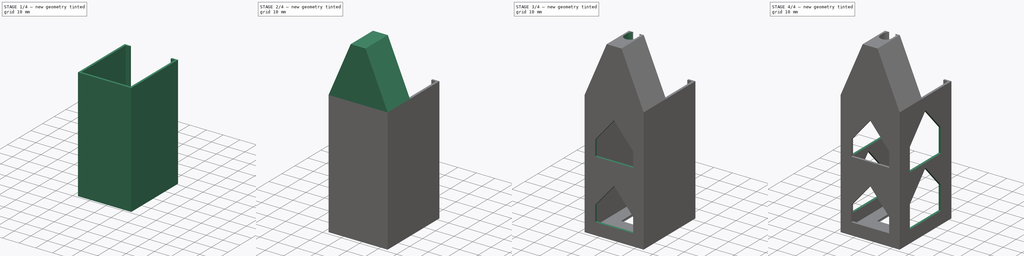
[diagram: build sequence overview — one tinted view per stage of 4, left to right]
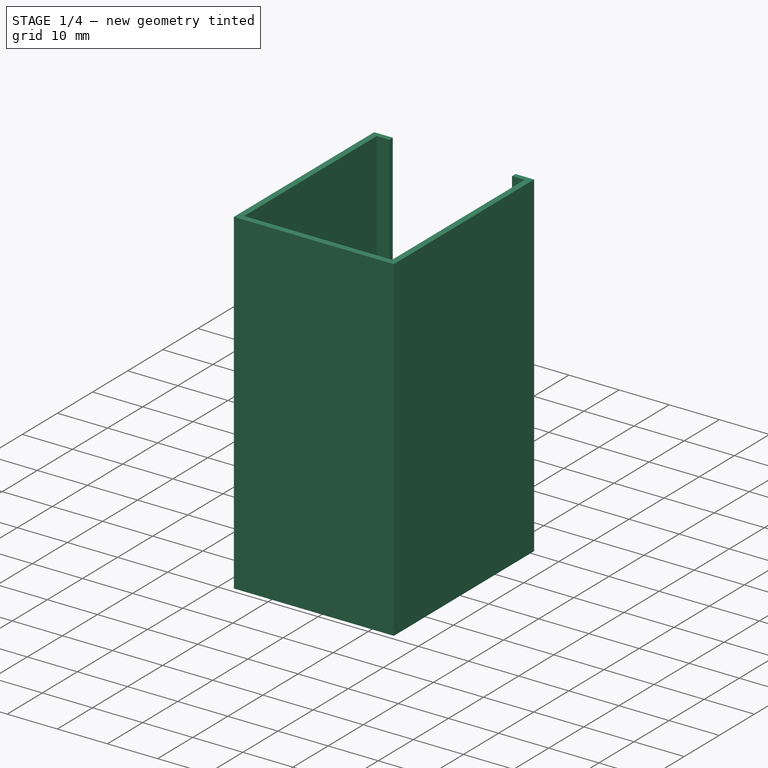
[diagram: stage 1 of 4 — iso view after this stage's code; geometry added in this stage tinted green]
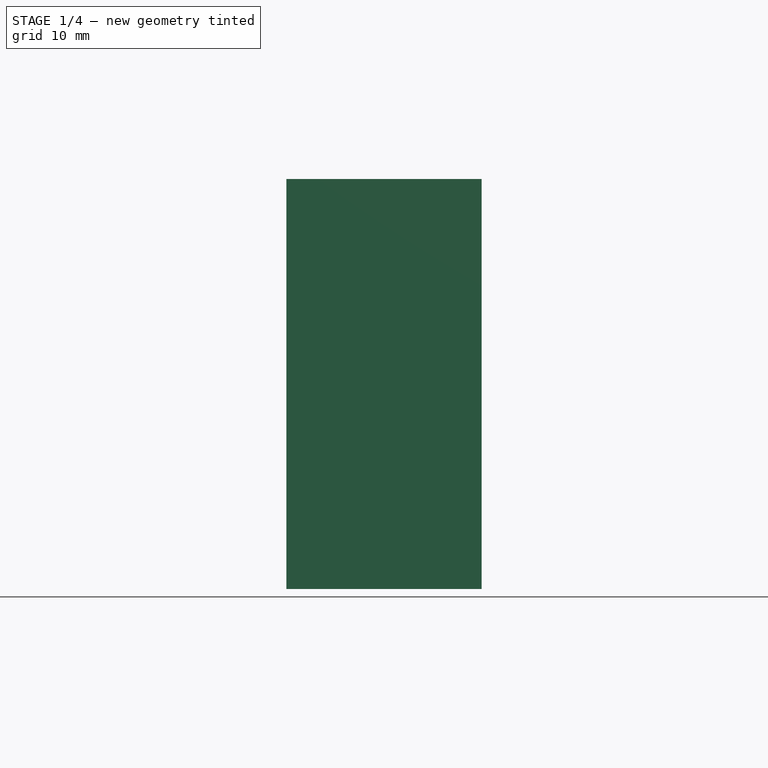
[diagram: stage 1 of 4 — front view after this stage's code; geometry added in this stage tinted green]
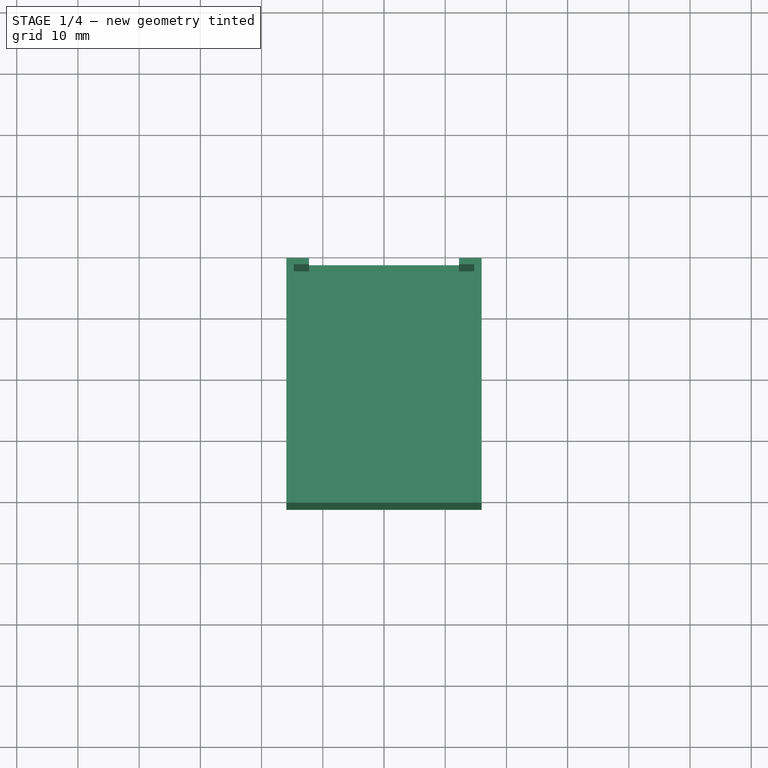
[diagram: stage 1 of 4 — top view after this stage's code; geometry added in this stage tinted green]
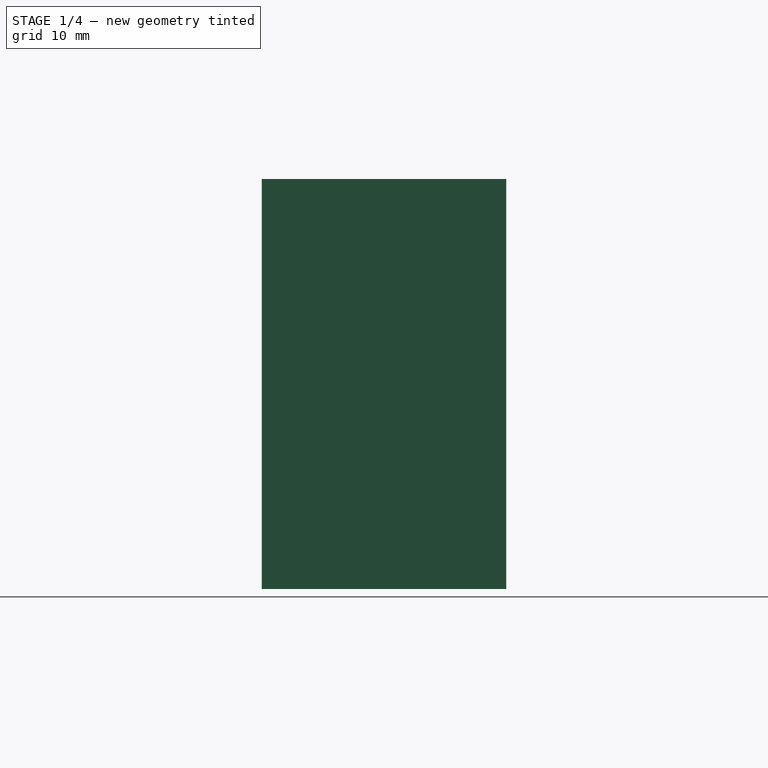
[diagram: stage 1 of 4 — right view after this stage's code; geometry added in this stage tinted green]
FCSTD DOCUMENT  (FreeCAD 0.19R)
Label: PlugTHing
License: All rights reserved
LicenseURL: http://en.wikipedia.org/wiki/All_rights_reserved
objects: Sketcher::SketchObject×8, PartDesign::Pad×4, PartDesign::Pocket×4, PartDesign::LinearPattern×2, PartDesign::Body×1
note: 27 computed .brp shape members not serialized (recipe doc carries the construction recipe); baked Part::Feature solids carry a one-line shape summary decoded from their .brp

FEATURE [Sketcher::SketchObject] Sketch
  FullyConstrained = true
  MapMode = 5
  Support = -> [XY_Plane]
  sketch-geometry (12):
    g0: LineSegment StartX=14.75 StartY=37.75 StartZ=0 EndX=14.75 EndY=0 EndZ=0
    g1: LineSegment StartX=14.75 StartY=0 StartZ=0 EndX=-14.75 EndY=0 EndZ=0
    g2: LineSegment StartX=-14.75 StartY=0 StartZ=0 EndX=-14.75 EndY=37.75 EndZ=0
    g3: LineSegment StartX=14.75 StartY=37.75 StartZ=0 EndX=12.25 EndY=37.75 EndZ=0
    g4: LineSegment StartX=-14.75 StartY=37.75 StartZ=0 EndX=-12.25 EndY=37.75 EndZ=0
    g5: LineSegment StartX=12.25 StartY=37.75 StartZ=0 EndX=12.25 EndY=38.75 EndZ=0
    g6: LineSegment StartX=12.25 StartY=38.75 StartZ=0 EndX=15.95 EndY=38.75 EndZ=0
    g7: LineSegment StartX=15.95 StartY=38.75 StartZ=0 EndX=15.95 EndY=-1.2 EndZ=0
    g8: LineSegment StartX=15.95 StartY=-1.2 StartZ=0 EndX=-15.95 EndY=-1.2 EndZ=0
    g9: LineSegment StartX=-15.95 StartY=-1.2 StartZ=0 EndX=-15.95 EndY=38.75 EndZ=0
    g10: LineSegment StartX=-15.95 StartY=38.75 StartZ=0 EndX=-12.25 EndY=38.75 EndZ=0
    g11: LineSegment StartX=-12.25 StartY=38.75 StartZ=0 EndX=-12.25 EndY=37.75 EndZ=0
  constraints (35):
    c: Coincident(g0,g1)
    c: Coincident(g1,g2)
    c: Horizontal(g1)
    c: Vertical(g0)
    c: Vertical(g2)
    c: Symmetric(g0,g1,g-1)
    c: Distance(g1) = 29.5
    c: Distance(g0) = 37.75
    c: Coincident(g3,g0)
    c: Coincident(g4,g2)
    c: Horizontal(g4)
    c: Coincident(g5,g3)
    c: Coincident(g5,g6)
    c: Coincident(g6,g7)
    c: Vertical(g7)
    c: Coincident(g7,g8)
    c: Horizontal(g8)
    c: Coincident(g8,g9)
    c: Vertical(g9)
    c: Coincident(g9,g10)
    c: Horizontal(g10)
    c: Coincident(g10,g11)
    c: Coincident(g11,g4)
    c: Distance(g1,g9) = 1.2
    c: Distance(g7,g0) = 1.2
    c: Distance(g7,g1) = 1.2
    c: Distance(g2,g10) = 1
    c: Distance(g0,g6) = 1
    c: Horizontal(g6)
    c: Horizontal(g3)
    c: Vertical(g11)
    c: DistanceY(g2) = 37.75
    c: Distance(g4) = 2.5
    c: Equal(g3,g4)
    c: Vertical(g5)
FEATURE [PartDesign::Pad] Pad
  Direction = (1,1,1)
  Length = 66
  Length2 = 100
  Profile = -> Sketch
  Type = 0
FEATURE [Sketcher::SketchObject] Sketch001
  ExternalGeometry = -> [Pad]
  FullyConstrained = true
  MapMode = 5
  Placement = pos=(0,0,0) rot=(1,0,0;3.14159rad)
  Support = -> [Pad]
  sketch-geometry (4):
    g0: LineSegment StartX=-15.95 StartY=1.2 StartZ=0 EndX=15.95 EndY=1.2 EndZ=0
    g1: LineSegment StartX=15.95 StartY=1.2 StartZ=0 EndX=15.95 EndY=-38.75 EndZ=0
    g2: LineSegment StartX=15.95 StartY=-38.75 StartZ=0 EndX=-15.95 EndY=-38.75 EndZ=0
    g3: LineSegment StartX=-15.95 StartY=-38.75 StartZ=0 EndX=-15.95 EndY=1.2 EndZ=0
  constraints (9):
    c: Coincident(g0,g1)
    c: Coincident(g1,g2)
    c: Coincident(g2,g3)
    c: Coincident(g3,g0)
    c: Horizontal(g2)
    c: Vertical(g3)
    c: Coincident(g0,g-3)
    c: Coincident(g0,g-3)
    c: Coincident(g1,g-4)
FEATURE [PartDesign::Pad] Pad001
  BaseFeature = -> Pad
  Direction = (1,1,1)
  Length = 1
  Length2 = 100
  Profile = -> Sketch001
  Type = 0
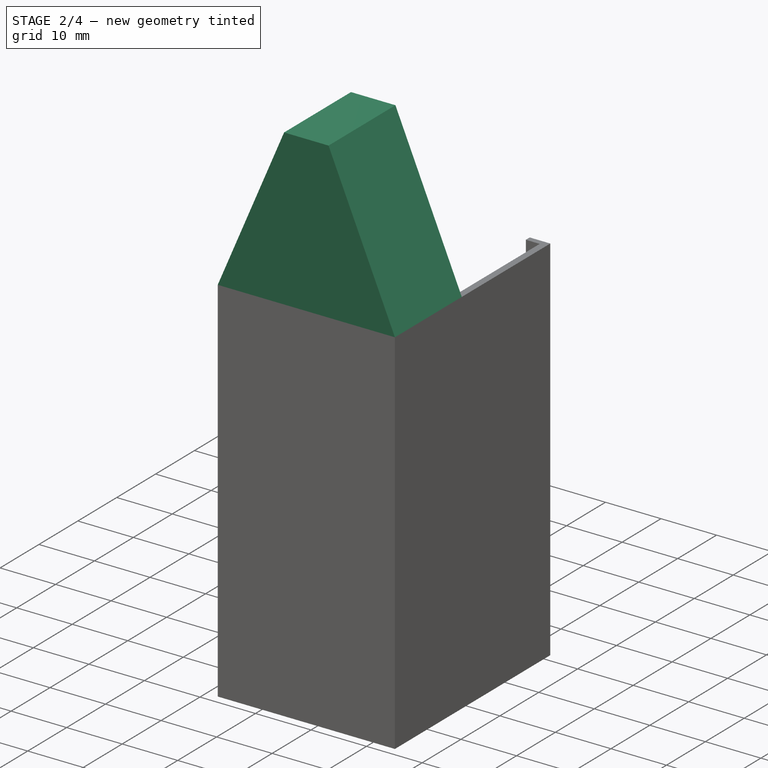
[diagram: stage 2 of 4 — iso view after this stage's code; geometry added in this stage tinted green]
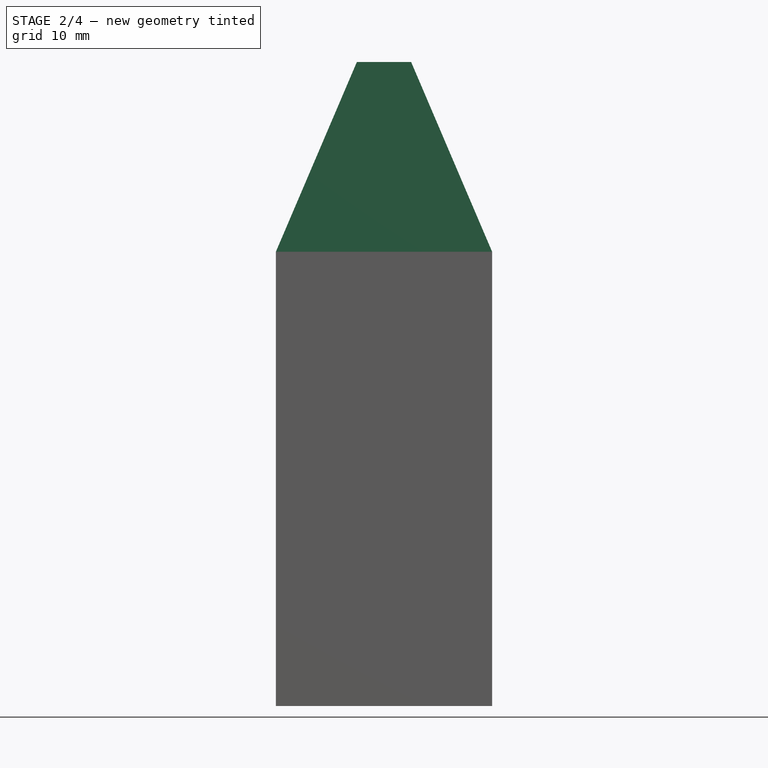
[diagram: stage 2 of 4 — front view after this stage's code; geometry added in this stage tinted green]
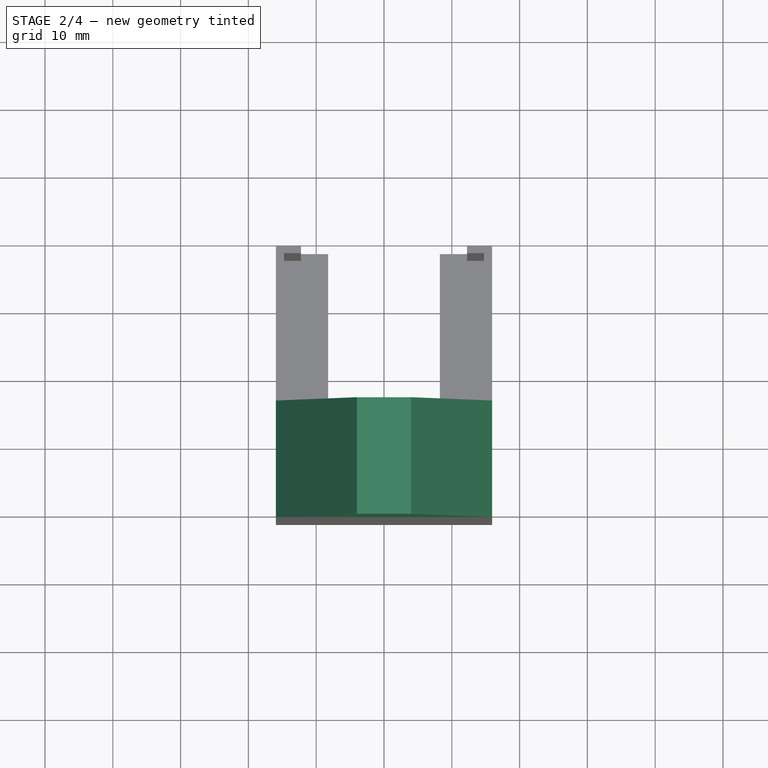
[diagram: stage 2 of 4 — top view after this stage's code; geometry added in this stage tinted green]
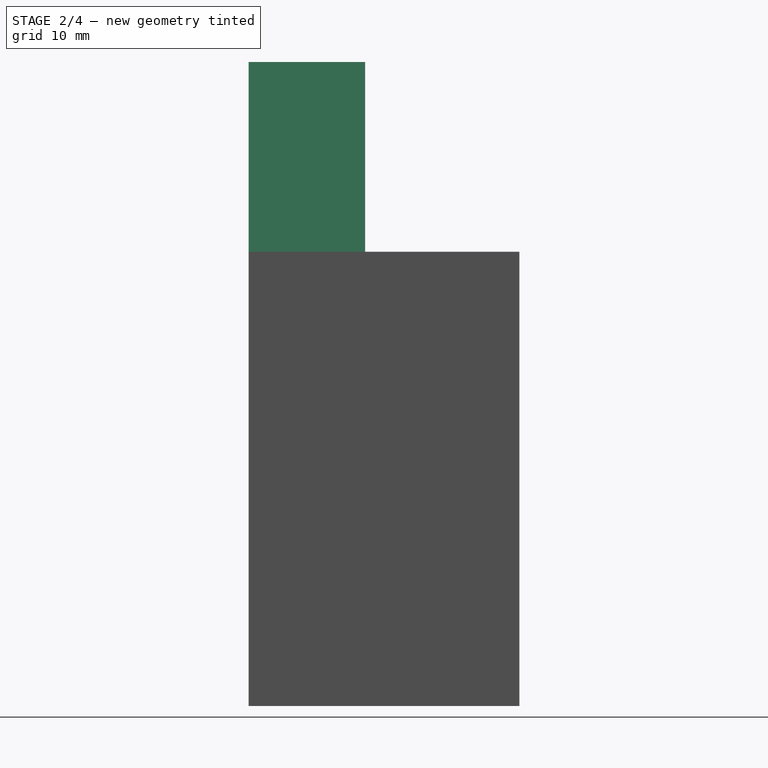
[diagram: stage 2 of 4 — right view after this stage's code; geometry added in this stage tinted green]
FEATURE [Sketcher::SketchObject] Sketch002
  ExternalGeometry = -> [Pad001]
  FullyConstrained = true
  MapMode = 5
  Placement = pos=(0,-1.2,0) rot=(1,0,0;1.5708rad)
  Support = -> [Pad001]
  sketch-geometry (4):
    g0: LineSegment StartX=-15.95 StartY=66 StartZ=0 EndX=-4 EndY=94 EndZ=0
    g1: LineSegment StartX=-4 StartY=94 StartZ=0 EndX=4 EndY=94 EndZ=0
    g2: LineSegment StartX=4 StartY=94 StartZ=0 EndX=15.95 EndY=66 EndZ=0
    g3: LineSegment StartX=15.95 StartY=66 StartZ=0 EndX=-15.95 EndY=66 EndZ=0
  constraints (9):
    c: Coincident(g-3,g0)
    c: Coincident(g0,g1)
    c: Coincident(g1,g2)
    c: Coincident(g2,g-3)
    c: Coincident(g2,g3)
    c: Coincident(g3,g0)
    c: Distance(g1) = 8
    c: Symmetric(g1,g0,g-2)
    c: Distance(g1,g3) = 28
FEATURE [PartDesign::Pad] Pad002
  BaseFeature = -> Pad001
  Direction = (1,1,1)
  Length = 1.2
  Length2 = 100
  Profile = -> Sketch002
  Reversed = true
  Type = 0
FEATURE [Sketcher::SketchObject] Sketch007
  ExternalGeometry = -> [Pad002]
  FullyConstrained = true
  MapMode = 5
  Placement = pos=(0,-2.6e-15,0) rot=(0,0.707107,0.707107;3.14159rad)
  Support = -> [Pad002]
  sketch-geometry (8):
    g0: LineSegment StartX=-15.95 StartY=66 StartZ=0 EndX=-14.7 EndY=66 EndZ=0
    g1: LineSegment StartX=-14.7 StartY=66 StartZ=0 EndX=-3.5 EndY=88 EndZ=0
    g2: LineSegment StartX=-3.5 StartY=88 StartZ=0 EndX=3.5 EndY=88 EndZ=0
    g3: LineSegment StartX=3.5 StartY=88 StartZ=0 EndX=14.7 EndY=66 EndZ=0
    g4: LineSegment StartX=14.7 StartY=66 StartZ=0 EndX=15.95 EndY=66 EndZ=0
    g5: LineSegment StartX=15.95 StartY=66 StartZ=0 EndX=4 EndY=94 EndZ=0
    g6: LineSegment StartX=4 StartY=94 StartZ=0 EndX=-4 EndY=94 EndZ=0
    g7: LineSegment StartX=-4 StartY=94 StartZ=0 EndX=-15.95 EndY=66 EndZ=0
  constraints (19):
    c: Coincident(g4,g3)
    c: Distance(g4) = 1.25
    c: Coincident(g4,g5)
    c: Distance(g0) = 1.25
    c: Coincident(g0,g7)
    c: Coincident(g1,g0)
    c: Coincident(g0,g-4)
    c: Horizontal(g0)
    c: Horizontal(g4)
    c: Coincident(g4,g-3)
    c: Distance(g2) = 7
    c: Symmetric(g2,g2,g-2)
    c: Coincident(g3,g2)
    c: Coincident(g1,g2)
    c: DistanceY(g2) = 88
    c: Coincident(g7,g-4)
    c: Coincident(g6,g7)
    c: Coincident(g6,g-3)
    c: Coincident(g5,g6)
FEATURE [PartDesign::Pad] Pad003
  BaseFeature = -> Pad002
  Direction = (1,1,1)
  Length = 16
  Length2 = 100
  Profile = -> Sketch007
  Type = 0
FEATURE [Sketcher::SketchObject] Sketch011
  FullyConstrained = false
  MapMode = 5
  Placement = pos=(0,0,-1) rot=(1,0,0;3.14159rad)
  Support = -> [Pad003]
  sketch-geometry (4):
    g0: LineSegment StartX=-8.23572 StartY=-16 StartZ=0 EndX=8.23572 EndY=-16 EndZ=0
    g1: LineSegment StartX=8.23572 StartY=-16 StartZ=0 EndX=8.23572 EndY=-46.4155 EndZ=0
    g2: LineSegment StartX=8.23572 StartY=-46.4155 StartZ=0 EndX=-8.23572 EndY=-46.4155 EndZ=0
    g3: LineSegment StartX=-8.23572 StartY=-46.4155 StartZ=0 EndX=-8.23572 EndY=-16 EndZ=0
  constraints (9):
    c: Coincident(g0,g1)
    c: Coincident(g1,g2)
    c: Coincident(g2,g3)
    c: Coincident(g3,g0)
    c: Horizontal(g2)
    c: Vertical(g1)
    c: Vertical(g3)
    c: Symmetric(g0,g0,g-2)
    c: DistanceY(g0) = -16
FEATURE [PartDesign::Pocket] Pocket
  BaseFeature = -> Pad003
  Length = 5
  Length2 = 100
  Profile = -> Sketch011
  Type = 0
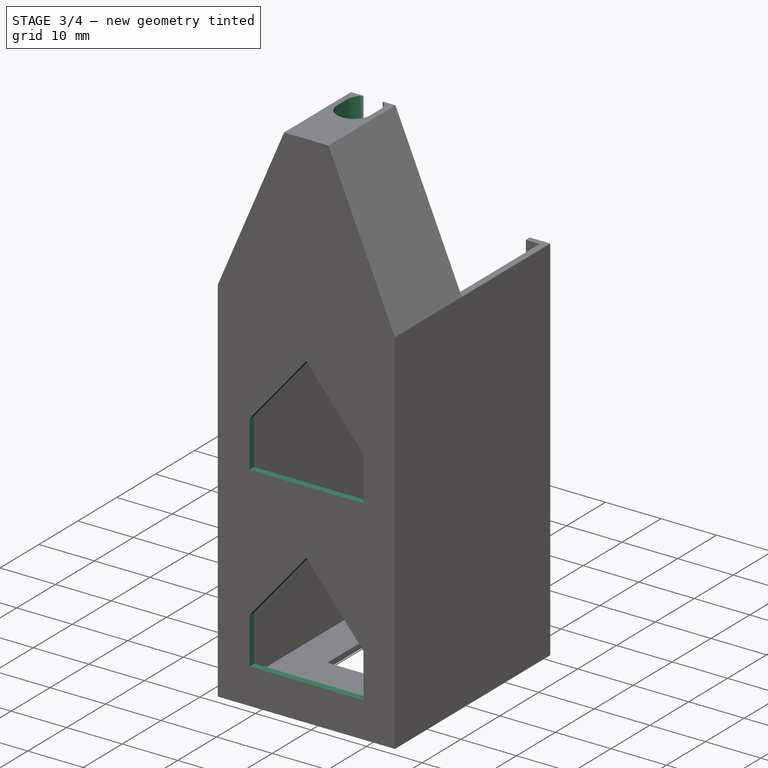
[diagram: stage 3 of 4 — iso view after this stage's code; geometry added in this stage tinted green]
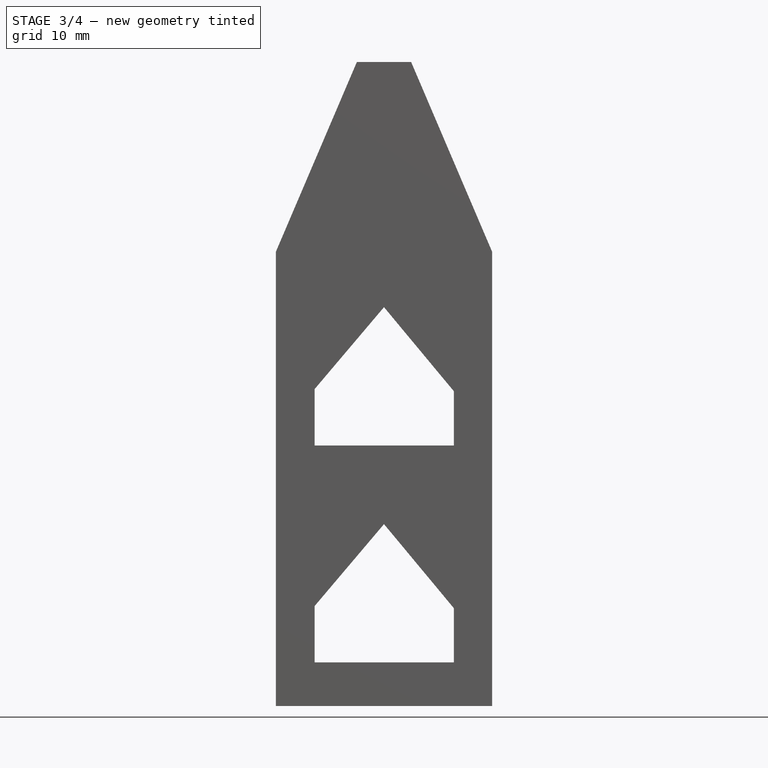
[diagram: stage 3 of 4 — front view after this stage's code; geometry added in this stage tinted green]
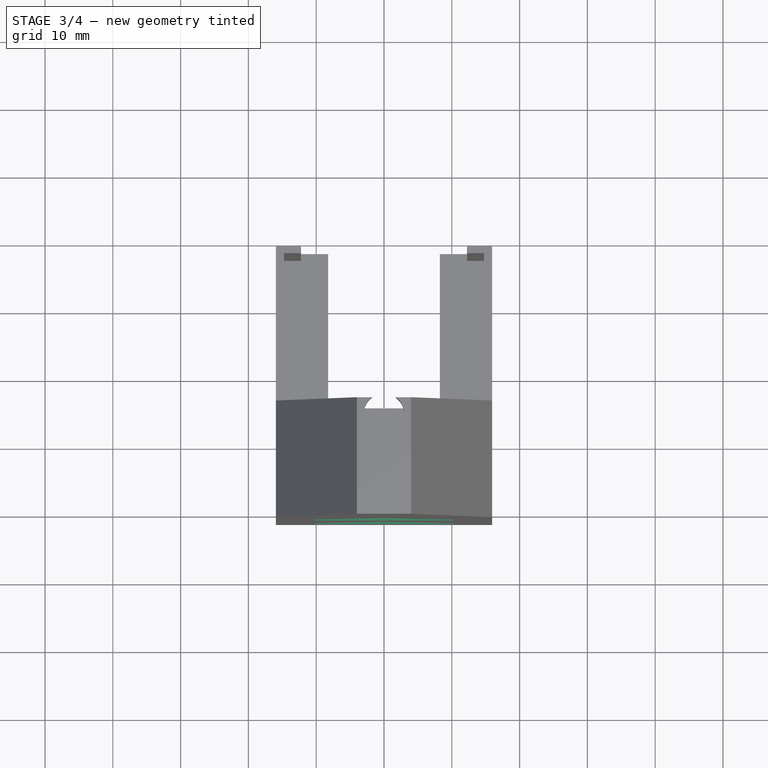
[diagram: stage 3 of 4 — top view after this stage's code; geometry added in this stage tinted green]
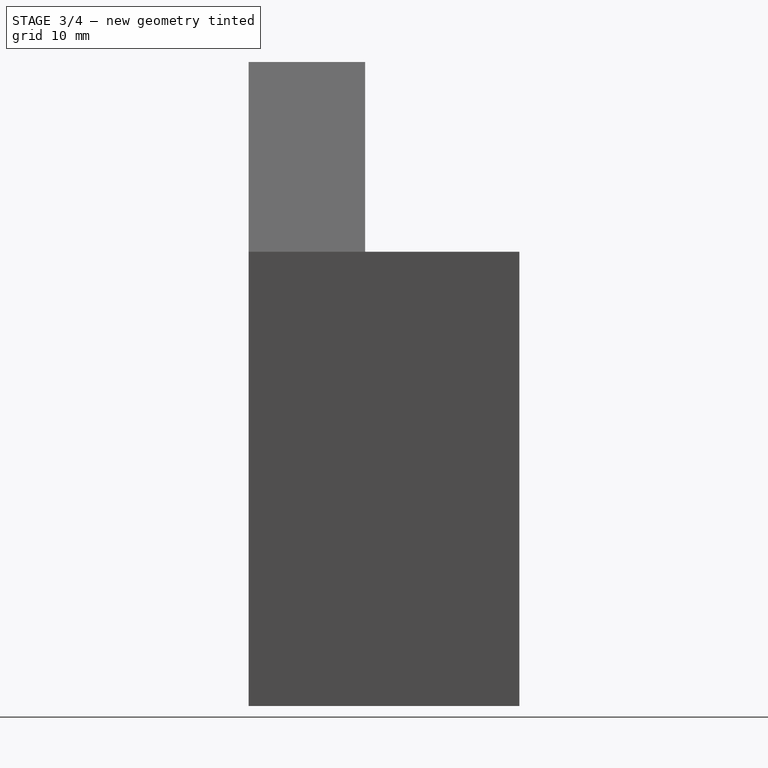
[diagram: stage 3 of 4 — right view after this stage's code; geometry added in this stage tinted green]
FEATURE [Sketcher::SketchObject] Sketch012
  FullyConstrained = false
  MapMode = 5
  Placement = pos=(0,2.09e-14,94) rot=(0,0,1;0rad)
  Support = -> [Pocket]
  sketch-geometry (4):
    g0: ArcOfCircle CenterX=-0.014618 CenterY=13.549 CenterZ=0 NormalX=0 NormalY=0 NormalZ=1 AngleXU=0 Radius=3 StartAngle=0 EndAngle=3.14159
    g1: ArcOfCircle CenterX=-0.014618 CenterY=11.034 CenterZ=0 NormalX=0 NormalY=0 NormalZ=1 AngleXU=0 Radius=3 StartAngle=3.14159 EndAngle=6.28319
    g2: LineSegment StartX=-3.01462 StartY=13.549 StartZ=0 EndX=-3.01462 EndY=11.034 EndZ=0
    g3: LineSegment StartX=2.98538 StartY=13.549 StartZ=0 EndX=2.98538 EndY=11.034 EndZ=0
  constraints (7):
    c: Tangent(g0,g3) = 1.5708
    c: Tangent(g0,g2) = -1.5708
    c: Tangent(g2,g1) = -1.5708
    c: Tangent(g3,g1) = 1.5708
    c: Vertical(g2)
    c: Equal(g0,g1)
    c: Radius(g1) = 3
FEATURE [PartDesign::Pocket] Pocket001
  BaseFeature = -> Pocket
  Length = 8
  Length2 = 100
  Profile = -> Sketch012
  Type = 0
FEATURE [Sketcher::SketchObject] Sketch014
  FullyConstrained = false
  MapMode = 5
  Placement = pos=(0,-1.2,0) rot=(1,0,0;1.5708rad)
  Support = -> [Pocket001]
  sketch-geometry (5):
    g0: LineSegment StartX=0 StartY=25.8332 StartZ=0 EndX=-10.2379 EndY=13.7475 EndZ=0
    g1: LineSegment StartX=-10.2379 StartY=13.7475 StartZ=0 EndX=-10.2379 EndY=5.43468 EndZ=0
    g2: LineSegment StartX=-10.2379 StartY=5.43468 StartZ=0 EndX=10.2979 EndY=5.43468 EndZ=0
    g3: LineSegment StartX=10.2979 StartY=5.43468 StartZ=0 EndX=10.2979 EndY=13.4432 EndZ=0
    g4: LineSegment StartX=10.2979 StartY=13.4432 StartZ=0 EndX=0 EndY=25.8332 EndZ=0
  constraints (10):
    c: PointOnObject(g0,g-2)
    c: Coincident(g0,g1)
    c: Vertical(g1)
    c: Coincident(g1,g2)
    c: Horizontal(g2)
    c: Coincident(g2,g3)
    c: Coincident(g3,g4)
    c: Coincident(g4,g0)
    c: Vertical(g3)
    c: Angle(g0,g4) = 1.39626
FEATURE [PartDesign::Pocket] Pocket002
  BaseFeature = -> Pocket001
  Length = 5
  Length2 = 100
  Profile = -> Sketch014
  Type = 0
FEATURE [PartDesign::LinearPattern] LinearPattern
  BaseFeature = -> Pocket002
  Direction = -> Sketch014 [V_Axis]
  Length = 32
  Occurrences = 2
  Originals = -> [Pocket002]
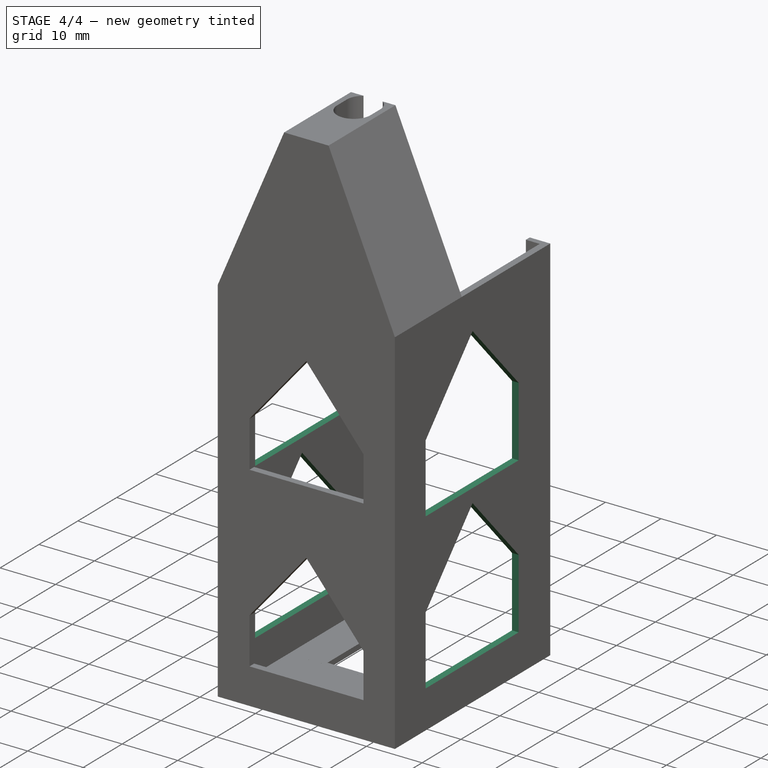
[diagram: stage 4 of 4 — iso view after this stage's code; geometry added in this stage tinted green]
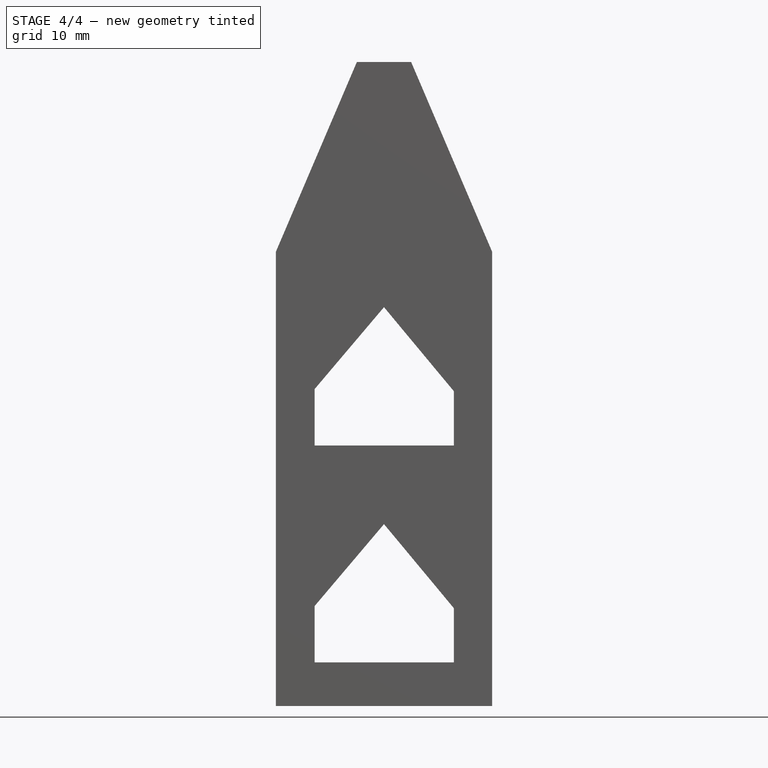
[diagram: stage 4 of 4 — front view after this stage's code; geometry added in this stage tinted green]
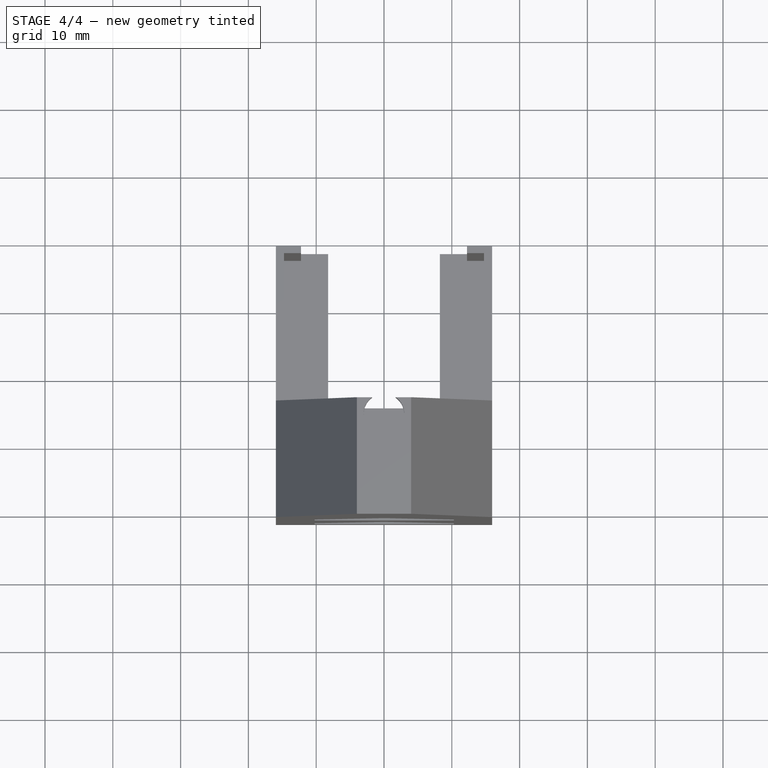
[diagram: stage 4 of 4 — top view after this stage's code; geometry added in this stage tinted green]
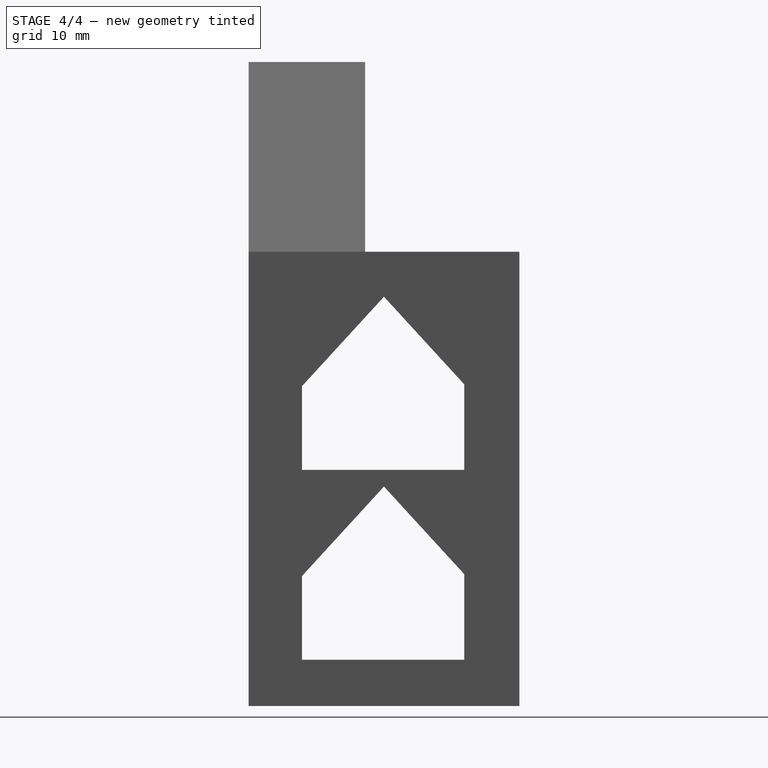
[diagram: stage 4 of 4 — right view after this stage's code; geometry added in this stage tinted green]
FEATURE [Sketcher::SketchObject] Sketch015
  FullyConstrained = false
  MapMode = 5
  Placement = pos=(15.95,0,0) rot=(0.57735,0.57735,0.57735;2.0944rad)
  Support = -> [LinearPattern]
  sketch-geometry (5):
    g0: LineSegment StartX=18.7701 StartY=31.3746 StartZ=0 EndX=6.68775 EndY=18.189 EndZ=0
    g1: LineSegment StartX=6.68775 StartY=18.189 StartZ=0 EndX=6.68775 EndY=5.82921 EndZ=0
    g2: LineSegment StartX=6.68775 StartY=5.82921 StartZ=0 EndX=30.6205 EndY=5.82921 EndZ=0
    g3: LineSegment StartX=30.6205 StartY=5.82921 StartZ=0 EndX=30.6205 EndY=18.4421 EndZ=0
    g4: LineSegment StartX=30.6205 StartY=18.4421 StartZ=0 EndX=18.7701 EndY=31.3746 EndZ=0
  constraints (10):
    c: Coincident(g0,g1)
    c: Vertical(g1)
    c: Coincident(g1,g2)
    c: Horizontal(g2)
    c: Coincident(g2,g3)
    c: Coincident(g3,g4)
    c: Coincident(g4,g0)
    c: Angle(g0,g4) = 1.48353
    c: Vertical(g3)
    c: Angle(g0) = -2.31256
FEATURE [PartDesign::Pocket] Pocket003
  BaseFeature = -> LinearPattern
  Length = 5
  Length2 = 100
  Profile = -> Sketch015
  Type = 1
FEATURE [PartDesign::LinearPattern] LinearPattern001
  BaseFeature = -> Pocket003
  Direction = -> Sketch015 [V_Axis]
  Length = 28
  Occurrences = 2
  Originals = -> [Pocket003]
FEATURE [PartDesign::Body] Body
  Group = -> [Sketch,Pad,Sketch001,Pad001,Sketch002,Pad002,Sketch007,Pad003,Sketch011,Pocket,Sketch012,Pocket001,Sketch014,Pocket002,LinearPattern,Sketch015,Pocket003,LinearPattern001]
  Origin = -> Origin
  Tip = -> LinearPattern001
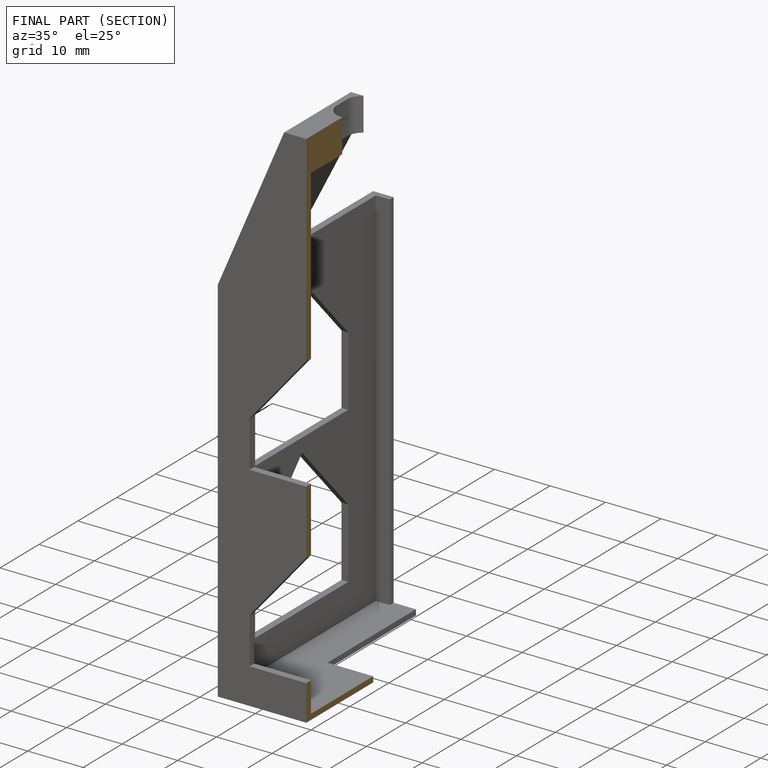
[diagram: finished part — half-section view (interior)]
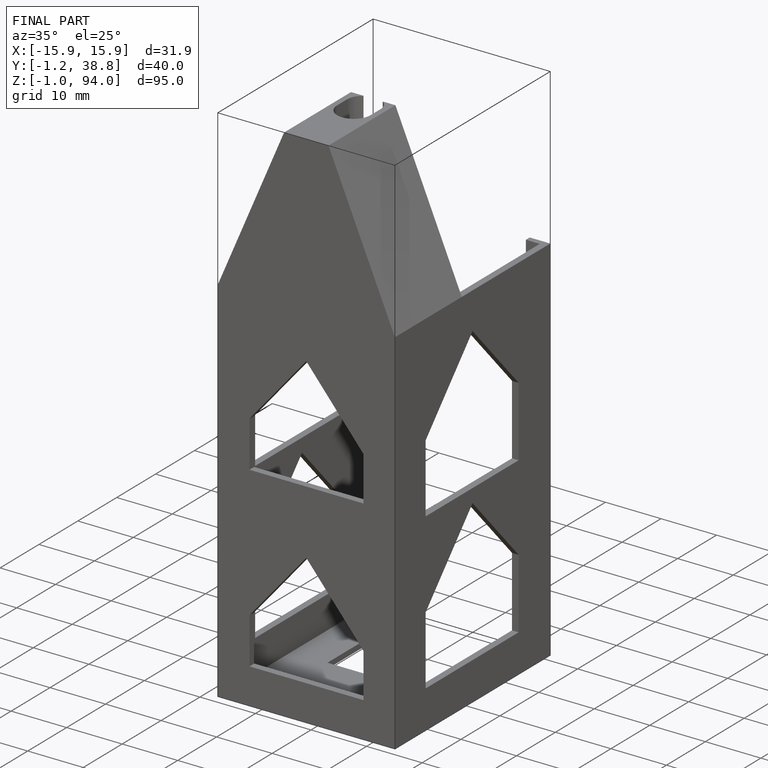
[diagram: finished part — iso view with bounding-box wireframe]
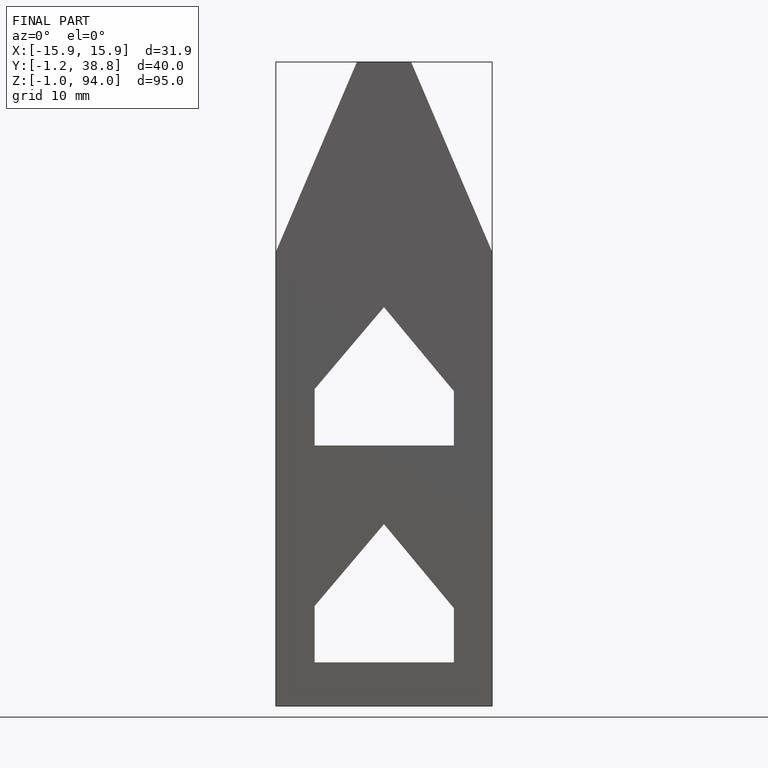
[diagram: finished part — front view with bounding-box wireframe]
